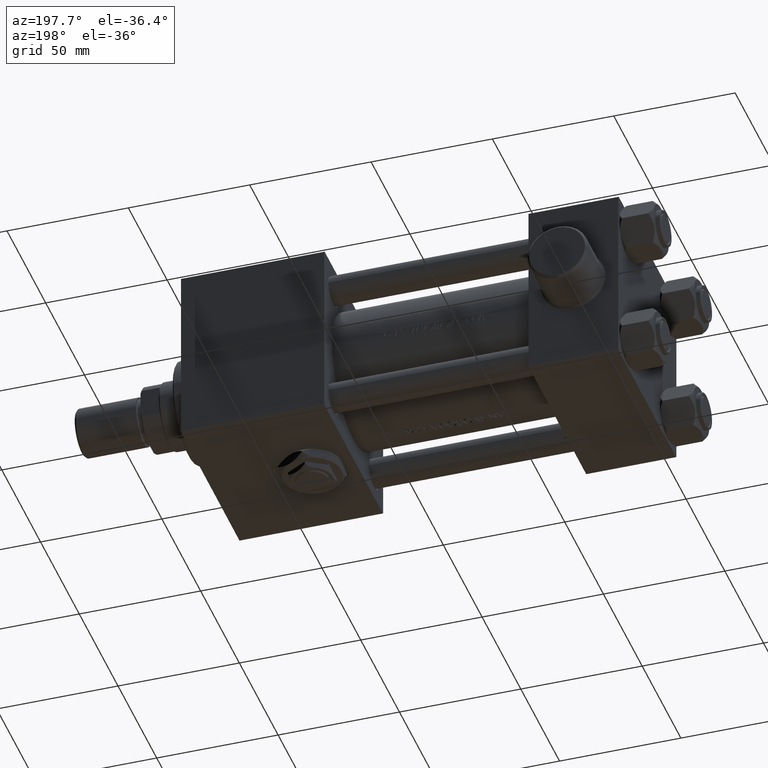
[diagram: clean part render]
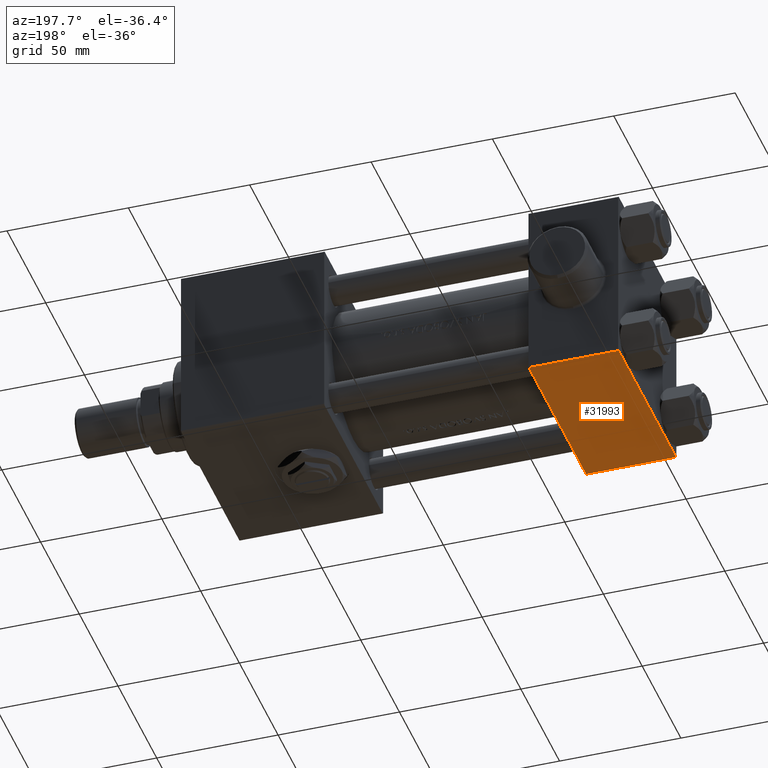
[diagram: same view with one face highlighted and labeled with its STEP entity id]
A machine part, auxiliary view. The second image highlights one B-rep face of the part: STEP entity #31993.
In plain terms, the highlighted planar face has unit normal (0, 0, -1).
Its self-contained STEP definition (entity closure, byte-faithful):
#1775 = CARTESIAN_POINT ( 'NONE',  ( 0.000000000000000000, 36.99999999999997868, -37.50000000000000000 ) ) ;
#3667 = EDGE_LOOP ( 'NONE', ( #3748, #35954, #25621, #26456 ) ) ;
#3748 = ORIENTED_EDGE ( 'NONE', *, *, #34713, .F. ) ;
#3855 = EDGE_CURVE ( 'NONE', #11848, #13578, #46877, .T. ) ;
#6424 = VECTOR ( 'NONE', #30698, 1000.000000000000000 ) ;
#7203 = CARTESIAN_POINT ( 'NONE',  ( 37.00000000000000000, -37.00000000000002132, -37.50000000000000711 ) ) ;
#8498 = VECTOR ( 'NONE', #18928, 1000.000000000000000 ) ;
#8782 = CARTESIAN_POINT ( 'NONE',  ( 37.00000000000000000, 36.99999999999997868, -37.50000000000000000 ) ) ;
#9216 = CARTESIAN_POINT ( 'NONE',  ( 37.00000000000000000, 36.99999999999997868, -37.50000000000000000 ) ) ;
#10764 = CARTESIAN_POINT ( 'NONE',  ( 0.000000000000000000, 37.49999999999999289, -37.50000000000000000 ) ) ;
#11848 = VERTEX_POINT ( 'NONE', #1775 ) ;
#13578 = VERTEX_POINT ( 'NONE', #8782 ) ;
#15162 = CARTESIAN_POINT ( 'NONE',  ( 37.00000000000000000, 37.49999999999999289, -37.50000000000000000 ) ) ;
#17154 = VECTOR ( 'NONE', #20125, 1000.000000000000000 ) ;
#18928 = DIRECTION ( 'NONE',  ( 0.000000000000000000, -1.000000000000000000, -9.251858538542972814E-17 ) ) ;
#20125 = DIRECTION ( 'NONE',  ( 1.000000000000000000, 0.000000000000000000, 0.000000000000000000 ) ) ;
#22020 = EDGE_CURVE ( 'NONE', #47333, #31251, #25529, .T. ) ;
#22326 = DIRECTION ( 'NONE',  ( 0.000000000000000000, 9.251858538542972814E-17, -1.000000000000000000 ) ) ;
#22808 = DIRECTION ( 'NONE',  ( 0.000000000000000000, 1.000000000000000000, 9.251858538542972814E-17 ) ) ;
#24769 = CARTESIAN_POINT ( 'NONE',  ( 0.000000000000000000, -37.00000000000002132, -37.50000000000000711 ) ) ;
#25190 = EDGE_CURVE ( 'NONE', #13578, #47333, #45559, .T. ) ;
#25529 = LINE ( 'NONE', #40629, #46660 ) ;
#25621 = ORIENTED_EDGE ( 'NONE', *, *, #25190, .T. ) ;
#26373 = LINE ( 'NONE', #10764, #8498 ) ;
#26456 = ORIENTED_EDGE ( 'NONE', *, *, #22020, .T. ) ;
#30008 = FACE_OUTER_BOUND ( 'NONE', #3667, .T. ) ;
#30698 = DIRECTION ( 'NONE',  ( 0.000000000000000000, -1.000000000000000000, -9.251858538542972814E-17 ) ) ;
#31148 = AXIS2_PLACEMENT_3D ( 'NONE', #15162, #22326, #22808 ) ;
#31251 = VERTEX_POINT ( 'NONE', #24769 ) ;
#31993 = ADVANCED_FACE ( 'NONE', ( #30008 ), #45116, .T. ) ;
#33185 = DIRECTION ( 'NONE',  ( -1.000000000000000000, 0.000000000000000000, 0.000000000000000000 ) ) ;
#34713 = EDGE_CURVE ( 'NONE', #11848, #31251, #26373, .T. ) ;
#35954 = ORIENTED_EDGE ( 'NONE', *, *, #3855, .T. ) ;
#40629 = CARTESIAN_POINT ( 'NONE',  ( 0.000000000000000000, -37.00000000000002132, -37.50000000000000711 ) ) ;
#41848 = CARTESIAN_POINT ( 'NONE',  ( 37.00000000000000000, 37.49999999999999289, -37.50000000000000000 ) ) ;
#45116 = PLANE ( 'NONE',  #31148 ) ;
#45559 = LINE ( 'NONE', #41848, #6424 ) ;
#46660 = VECTOR ( 'NONE', #33185, 1000.000000000000000 ) ;
#46877 = LINE ( 'NONE', #9216, #17154 ) ;
#47333 = VERTEX_POINT ( 'NONE', #7203 ) ;